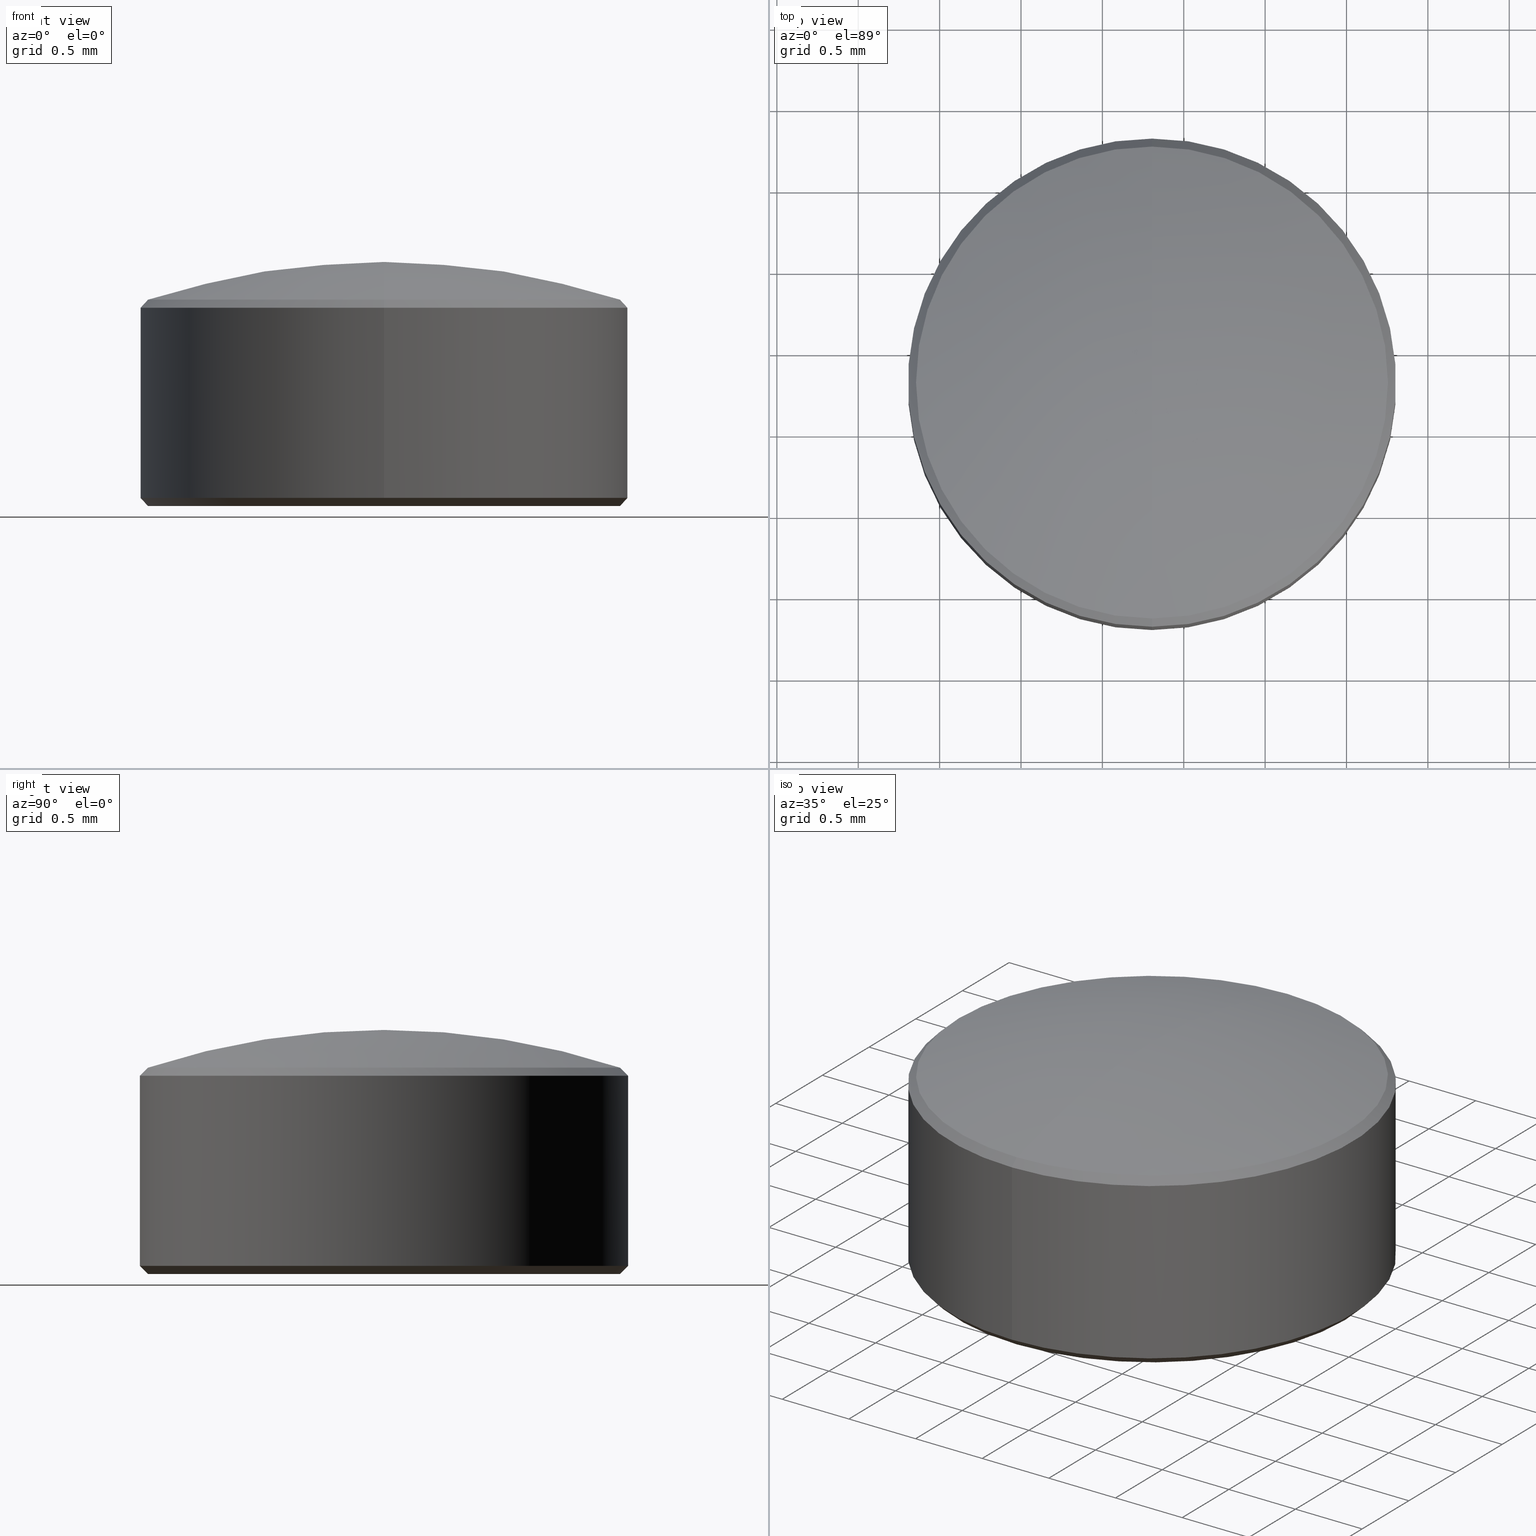
[diagram: canonical four-view strip — front | top / right | iso, engineering-drawing reading convention]
A machine part, canonical four-view strip (front | top / right | iso — engineering-drawing reading convention). The complete STEP part file that produces these views, byte-faithful:
ISO-10303-21;
HEADER;
FILE_DESCRIPTION (( 'STEP AP203' ),
    '1' );
FILE_NAME ('TTN162587-E0W.STEP',
    '2019-10-24T13:59:12',
    ( '' ),
    ( '' ),
    'SwSTEP 2.0',
    'SolidWorks 2018',
    '' );
FILE_SCHEMA (( 'CONFIG_CONTROL_DESIGN' ));
ENDSEC;

DATA;
#1 = AXIS2_PLACEMENT_3D ( 'NONE', #253, #212, #81 ) ;
#2 = COORDINATED_UNIVERSAL_TIME_OFFSET ( 5, 0, .BEHIND. ) ;
#3 = EDGE_LOOP ( 'NONE', ( #36, #68, #186, #115 ) ) ;
#4 = ORIENTED_EDGE ( 'NONE', *, *, #192, .F. ) ;
#5 = AXIS2_PLACEMENT_3D ( 'NONE', #184, #187, #50 ) ;
#6 = CIRCLE ( 'NONE', #25, 1.499999999999999778 ) ;
#7 = PERSON_AND_ORGANIZATION_ROLE ( 'design_owner' ) ;
#8 = DIRECTION ( 'NONE',  ( 0.0000000000000000000, 1.000000000000000000, 1.398669755947758989E-16 ) ) ;
#9 = VERTEX_POINT ( 'NONE', #236 ) ;
#10 = EDGE_CURVE ( 'NONE', #215, #9, #269, .T. ) ;
#11 = CC_DESIGN_SECURITY_CLASSIFICATION ( #112, ( #56 ) ) ;
#12 = APPROVAL_ROLE ( '' ) ;
#13 = ORIENTED_EDGE ( 'NONE', *, *, #177, .F. ) ;
#14 = LOCAL_TIME ( 9, 59, 12.00000000000000000, #32 ) ;
#15 = FACE_OUTER_BOUND ( 'NONE', #209, .T. ) ;
#16 = CC_DESIGN_PERSON_AND_ORGANIZATION_ASSIGNMENT ( #107, #7, ( #64 ) ) ;
#17 = EDGE_LOOP ( 'NONE', ( #74, #31, #288 ) ) ;
#18 = DIRECTION ( 'NONE',  ( 8.659560562354837948E-17, 0.7071067811865396902, 0.7071067811865553443 ) ) ;
#19 = DIRECTION ( 'NONE',  ( 0.0000000000000000000, 1.000000000000000000, 0.0000000000000000000 ) ) ;
#20 = APPROVAL ( #250, 'UNSPECIFIED' ) ;
#21 = CARTESIAN_POINT ( 'NONE',  ( 0.8048939134659998107, 1.311868098657955839, 1.891295987042918902 ) ) ;
#22 = LINE ( 'NONE', #88, #208 ) ;
#23 = DIRECTION ( 'NONE',  ( 0.0000000000000000000, 1.000000000000000000, 1.398669755947758989E-16 ) ) ;
#24 = FACE_OUTER_BOUND ( 'NONE', #100, .T. ) ;
#25 = AXIS2_PLACEMENT_3D ( 'NONE', #222, #121, #185 ) ;
#26 = DIRECTION ( 'NONE',  ( 0.0000000000000000000, -1.224646799147353207E-16, 1.000000000000000000 ) ) ;
#27 = ORIENTED_EDGE ( 'NONE', *, *, #219, .F. ) ;
#28 = DIRECTION ( 'NONE',  ( -0.0000000000000000000, 1.224646799147353207E-16, -1.000000000000000000 ) ) ;
#29 = PRODUCT_RELATED_PRODUCT_CATEGORY ( 'detail', '', ( #64 ) ) ;
#30 = EDGE_CURVE ( 'NONE', #258, #9, #210, .T. ) ;
#31 = ORIENTED_EDGE ( 'NONE', *, *, #57, .T. ) ;
#32 = COORDINATED_UNIVERSAL_TIME_OFFSET ( 5, 0, .BEHIND. ) ;
#33 = VECTOR ( 'NONE', #66, 1000.000000000000000 ) ;
#34 = VECTOR ( 'NONE', #149, 1000.000000000000114 ) ;
#35 = EDGE_CURVE ( 'NONE', #227, #235, #22, .T. ) ;
#36 = ORIENTED_EDGE ( 'NONE', *, *, #292, .T. ) ;
#37 = PRODUCT_DEFINITION ( 'UNKNOWN', '', #56, #151 ) ;
#38 = APPLICATION_CONTEXT ( 'configuration controlled 3d designs of mechanical parts and assemblies' ) ;
#39 = SHAPE_DEFINITION_REPRESENTATION ( #178, #138 ) ;
#40 = SPHERICAL_SURFACE ( 'NONE', #148, 4.650999999999999801 ) ;
#41 = EDGE_CURVE ( 'NONE', #237, #281, #159, .T. ) ;
#42 = ORIENTED_EDGE ( 'NONE', *, *, #230, .T. ) ;
#43 = EDGE_CURVE ( 'NONE', #87, #281, #77, .T. ) ;
#44 = DIRECTION ( 'NONE',  ( 1.000000000000000000, 1.224646799147353207E-16, 1.499759782661857608E-32 ) ) ;
#45 = DIRECTION ( 'NONE',  ( -0.0000000000000000000, 1.224646799147353207E-16, -1.000000000000000000 ) ) ;
#46 = DIRECTION ( 'NONE',  ( 0.0000000000000000000, 1.000000000000000000, 1.495451272393799296E-16 ) ) ;
#47 = CARTESIAN_POINT ( 'NONE',  ( 0.8048939134660000327, 2.761868098657955795, 1.891295987042919124 ) ) ;
#48 = DIRECTION ( 'NONE',  ( -0.0000000000000000000, 1.224646799147353207E-16, -1.000000000000000000 ) ) ;
#49 = CIRCLE ( 'NONE', #108, 1.500000000000000000 ) ;
#50 = DIRECTION ( 'NONE',  ( 0.0000000000000000000, 1.000000000000000000, 1.224646799147353207E-16 ) ) ;
#51 = ORIENTED_EDGE ( 'NONE', *, *, #278, .T. ) ;
#52 = EDGE_LOOP ( 'NONE', ( #4, #69, #82, #239 ) ) ;
#53 = AXIS2_PLACEMENT_3D ( 'NONE', #257, #117, #262 ) ;
#54 = ORIENTED_EDGE ( 'NONE', *, *, #244, .F. ) ;
#55 = FACE_OUTER_BOUND ( 'NONE', #52, .T. ) ;
#56 = PRODUCT_DEFINITION_FORMATION_WITH_SPECIFIED_SOURCE ( 'ANY', '', #64, .NOT_KNOWN. ) ;
#57 = EDGE_CURVE ( 'NONE', #237, #87, #93, .T. ) ;
#58 =( GEOMETRIC_REPRESENTATION_CONTEXT ( 3 ) GLOBAL_UNCERTAINTY_ASSIGNED_CONTEXT ( ( #223 ) ) GLOBAL_UNIT_ASSIGNED_CONTEXT ( ( #109, #211, #132 ) ) REPRESENTATION_CONTEXT ( 'NONE', 'WORKASPACE' ) );
#59 = DIRECTION ( 'NONE',  ( 0.0000000000000000000, 1.000000000000000000, 0.0000000000000000000 ) ) ;
#60 = CARTESIAN_POINT ( 'NONE',  ( 0.8048939134659998107, 1.311868098657955839, -1.259704012957080899 ) ) ;
#61 = ADVANCED_FACE ( 'NONE', ( #89 ), #238, .T. ) ;
#62 = DIRECTION ( 'NONE',  ( -0.0000000000000000000, 1.224646799147353207E-16, -1.000000000000000000 ) ) ;
#63 = ADVANCED_FACE ( 'NONE', ( #15 ), #78, .T. ) ;
#64 = PRODUCT ( 'TTN162587-E0W', 'TTN162587-E0W', '', ( #195 ) ) ;
#65 = ORIENTED_EDGE ( 'NONE', *, *, #41, .T. ) ;
#66 = DIRECTION ( 'NONE',  ( -0.0000000000000000000, 1.224646799147353207E-16, -1.000000000000000000 ) ) ;
#67 = APPROVAL ( #85, 'UNSPECIFIED' ) ;
#68 = ORIENTED_EDGE ( 'NONE', *, *, #192, .T. ) ;
#69 = ORIENTED_EDGE ( 'NONE', *, *, #43, .T. ) ;
#70 = CARTESIAN_POINT ( 'NONE',  ( 0.8048939134660000327, -0.1881319013420442166, 1.941295987042919613 ) ) ;
#71 = EDGE_CURVE ( 'NONE', #227, #215, #198, .T. ) ;
#72 = AXIS2_PLACEMENT_3D ( 'NONE', #263, #44, #140 ) ;
#73 = CIRCLE ( 'NONE', #248, 1.500000000000000000 ) ;
#74 = ORIENTED_EDGE ( 'NONE', *, *, #41, .F. ) ;
#75 = CC_DESIGN_PERSON_AND_ORGANIZATION_ASSIGNMENT ( #265, #285, ( #56 ) ) ;
#76 = APPROVAL_DATE_TIME ( #189, #20 ) ;
#77 = CIRCLE ( 'NONE', #53, 1.450000000000001066 ) ;
#78 = CYLINDRICAL_SURFACE ( 'NONE', #179, 1.500000000000000000 ) ;
#79 = DATE_TIME_ROLE ( 'creation_date' ) ;
#80 = AXIS2_PLACEMENT_3D ( 'NONE', #162, #200, #19 ) ;
#81 = DIRECTION ( 'NONE',  ( 1.000000000000000000, 0.0000000000000000000, 0.0000000000000000000 ) ) ;
#82 = ORIENTED_EDGE ( 'NONE', *, *, #271, .T. ) ;
#83 = PERSON_AND_ORGANIZATION ( #254, #167 ) ;
#84 = APPLICATION_PROTOCOL_DEFINITION ( 'international standard', 'config_control_design', 1994, #38 ) ;
#85 = APPROVAL_STATUS ( 'not_yet_approved' ) ;
#86 = APPROVAL_DATE_TIME ( #146, #67 ) ;
#87 = VERTEX_POINT ( 'NONE', #144 ) ;
#88 = CARTESIAN_POINT ( 'NONE',  ( 0.8048939134660000327, -0.1881319013420442166, 1.891295987042918680 ) ) ;
#89 = FACE_OUTER_BOUND ( 'NONE', #147, .T. ) ;
#90 = AXIS2_PLACEMENT_3D ( 'NONE', #182, #91, #136 ) ;
#91 = DIRECTION ( 'NONE',  ( 0.0000000000000000000, -1.224646799147353207E-16, 1.000000000000000000 ) ) ;
#92 = EDGE_LOOP ( 'NONE', ( #13, #158, #273, #234 ) ) ;
#93 = CIRCLE ( 'NONE', #72, 4.650999999999999801 ) ;
#94 = DIRECTION ( 'NONE',  ( 0.0000000000000000000, 1.000000000000000000, 0.0000000000000000000 ) ) ;
#95 = DIRECTION ( 'NONE',  ( -0.0000000000000000000, 1.224646799147353207E-16, -1.000000000000000000 ) ) ;
#96 = CARTESIAN_POINT ( 'NONE',  ( 0.8048939134660000327, -0.1881319013420444108, 3.109492859778959950 ) ) ;
#97 = DIRECTION ( 'NONE',  ( 0.0000000000000000000, 1.000000000000000000, 1.445602896647339163E-16 ) ) ;
#98 = CONICAL_SURFACE ( 'NONE', #282, 1.499999999999999778, 0.7853981633974482790 ) ;
#99 = CLOSED_SHELL ( 'NONE', ( #152, #284, #213, #111, #216, #63, #174, #232, #61 ) ) ;
#100 = EDGE_LOOP ( 'NONE', ( #226, #65, #169 ) ) ;
#101 = COORDINATED_UNIVERSAL_TIME_OFFSET ( 5, 0, .BEHIND. ) ;
#102 = CC_DESIGN_APPROVAL ( #67, ( #37 ) ) ;
#103 = VECTOR ( 'NONE', #241, 1000.000000000000000 ) ;
#104 = CC_DESIGN_PERSON_AND_ORGANIZATION_ASSIGNMENT ( #83, #233, ( #56 ) ) ;
#105 = DIRECTION ( 'NONE',  ( 0.0000000000000000000, 0.7071067811865476838, -0.7071067811865474617 ) ) ;
#106 = APPROVAL_DATE_TIME ( #249, #267 ) ;
#107 = PERSON_AND_ORGANIZATION ( #254, #167 ) ;
#108 = AXIS2_PLACEMENT_3D ( 'NONE', #124, #294, #163 ) ;
#109 =( LENGTH_UNIT ( ) NAMED_UNIT ( * ) SI_UNIT ( .MILLI., .METRE. ) );
#110 = DATE_TIME_ROLE ( 'classification_date' ) ;
#111 = ADVANCED_FACE ( 'NONE', ( #170 ), #243, .T. ) ;
#112 = SECURITY_CLASSIFICATION ( '', '', #231 ) ;
#113 = ORIENTED_EDGE ( 'NONE', *, *, #30, .F. ) ;
#114 = FACE_OUTER_BOUND ( 'NONE', #92, .T. ) ;
#115 = ORIENTED_EDGE ( 'NONE', *, *, #271, .F. ) ;
#116 = EDGE_LOOP ( 'NONE', ( #42, #134, #175, #255 ) ) ;
#117 = DIRECTION ( 'NONE',  ( -0.0000000000000000000, 1.224646799147353207E-16, -1.000000000000000000 ) ) ;
#118 = AXIS2_PLACEMENT_3D ( 'NONE', #240, #28, #126 ) ;
#119 = DIRECTION ( 'NONE',  ( 0.0000000000000000000, 1.000000000000000000, 1.445602896647339163E-16 ) ) ;
#120 = LOCAL_TIME ( 9, 59, 12.00000000000000000, #2 ) ;
#121 = DIRECTION ( 'NONE',  ( -0.0000000000000000000, 1.224646799147353207E-16, -1.000000000000000000 ) ) ;
#122 = CARTESIAN_POINT ( 'NONE',  ( 0.8048939134659998107, 1.311868098657955839, -1.259704012957080899 ) ) ;
#123 = CC_DESIGN_APPROVAL ( #267, ( #56 ) ) ;
#124 = CARTESIAN_POINT ( 'NONE',  ( 0.8048939134659998107, 1.311868098657955839, 1.941295987042919835 ) ) ;
#125 = PLANE ( 'NONE',  #5 ) ;
#126 = DIRECTION ( 'NONE',  ( 0.0000000000000000000, 1.000000000000000000, 1.495451272393799296E-16 ) ) ;
#127 = ORIENTED_EDGE ( 'NONE', *, *, #10, .T. ) ;
#128 = DATE_AND_TIME ( #228, #120 ) ;
#129 = APPROVAL_ROLE ( '' ) ;
#130 = FACE_OUTER_BOUND ( 'NONE', #3, .T. ) ;
#131 = CARTESIAN_POINT ( 'NONE',  ( 0.8048939134659998107, -0.1381319013420442832, 1.891295987042918680 ) ) ;
#132 =( NAMED_UNIT ( * ) SI_UNIT ( $, .STERADIAN. ) SOLID_ANGLE_UNIT ( ) );
#133 = DIRECTION ( 'NONE',  ( 1.000000000000000000, 0.0000000000000000000, -0.0000000000000000000 ) ) ;
#134 = ORIENTED_EDGE ( 'NONE', *, *, #35, .T. ) ;
#135 = CC_DESIGN_DATE_AND_TIME_ASSIGNMENT ( #128, #110, ( #112 ) ) ;
#136 = DIRECTION ( 'NONE',  ( 0.0000000000000000000, -1.000000000000000000, -1.495451272393799049E-16 ) ) ;
#137 = CIRCLE ( 'NONE', #193, 1.449999999999999956 ) ;
#138 = ADVANCED_BREP_SHAPE_REPRESENTATION ( 'TTN162587-E0W', ( #229, #1 ), #58 ) ;
#139 = AXIS2_PLACEMENT_3D ( 'NONE', #141, #95, #266 ) ;
#140 = DIRECTION ( 'NONE',  ( -1.165558129956465865E-16, 1.000000000000000000, 0.0000000000000000000 ) ) ;
#141 = CARTESIAN_POINT ( 'NONE',  ( 0.8048939134659998107, 1.311868098657955839, 1.891295987042918902 ) ) ;
#142 = APPROVAL_PERSON_ORGANIZATION ( #183, #20, #153 ) ;
#143 = DIRECTION ( 'NONE',  ( 1.000000000000000000, 0.0000000000000000000, -0.0000000000000000000 ) ) ;
#144 = CARTESIAN_POINT ( 'NONE',  ( 0.8048939134660000327, -0.1381319013420453656, 3.159492859778958884 ) ) ;
#145 = FACE_OUTER_BOUND ( 'NONE', #17, .T. ) ;
#146 = DATE_AND_TIME ( #245, #298 ) ;
#147 = EDGE_LOOP ( 'NONE', ( #113, #54, #51, #27 ) ) ;
#148 = AXIS2_PLACEMENT_3D ( 'NONE', #122, #143, #23 ) ;
#149 = DIRECTION ( 'NONE',  ( 0.0000000000000000000, -0.7071067811865399122, 0.7071067811865551223 ) ) ;
#150 = PERSON_AND_ORGANIZATION_ROLE ( 'classification_officer' ) ;
#151 = DESIGN_CONTEXT ( 'detailed design', #214, 'design' ) ;
#152 = ADVANCED_FACE ( 'NONE', ( #114 ), #188, .T. ) ;
#153 = APPROVAL_ROLE ( '' ) ;
#154 = EDGE_CURVE ( 'NONE', #235, #9, #49, .T. ) ;
#155 = LINE ( 'NONE', #131, #34 ) ;
#156 = DIRECTION ( 'NONE',  ( -1.000000000000000000, 0.0000000000000000000, 0.0000000000000000000 ) ) ;
#157 = ORIENTED_EDGE ( 'NONE', *, *, #177, .T. ) ;
#158 = ORIENTED_EDGE ( 'NONE', *, *, #30, .T. ) ;
#159 = CIRCLE ( 'NONE', #260, 4.650999999999999801 ) ;
#160 = DIRECTION ( 'NONE',  ( 0.0000000000000000000, 0.0000000000000000000, 1.000000000000000000 ) ) ;
#161 = DIRECTION ( 'NONE',  ( 0.0000000000000000000, -1.224646799147353207E-16, 1.000000000000000000 ) ) ;
#162 = CARTESIAN_POINT ( 'NONE',  ( 0.8048939134659998107, 1.311868098657955617, 3.109492859778959950 ) ) ;
#163 = DIRECTION ( 'NONE',  ( 0.0000000000000000000, 1.000000000000000000, 1.445602896647339163E-16 ) ) ;
#164 = VECTOR ( 'NONE', #105, 1000.000000000000000 ) ;
#165 = CARTESIAN_POINT ( 'NONE',  ( 0.8048939134659998107, 1.311868098657955617, 3.109492859778959950 ) ) ;
#166 = ORIENTED_EDGE ( 'NONE', *, *, #71, .T. ) ;
#167 = ORGANIZATION ( 'UNSPECIFIED', 'UNSPECIFIED', '' ) ;
#168 = CARTESIAN_POINT ( 'NONE',  ( 0.8048939134659998107, 1.311868098657955839, 1.941295987042919835 ) ) ;
#169 = ORIENTED_EDGE ( 'NONE', *, *, #43, .F. ) ;
#170 = FACE_OUTER_BOUND ( 'NONE', #116, .T. ) ;
#171 = ORIENTED_EDGE ( 'NONE', *, *, #219, .T. ) ;
#172 = APPROVAL_PERSON_ORGANIZATION ( #289, #67, #129 ) ;
#173 = APPLICATION_PROTOCOL_DEFINITION ( 'international standard', 'config_control_design', 1994, #214 ) ;
#174 = ADVANCED_FACE ( 'NONE', ( #55 ), #98, .T. ) ;
#175 = ORIENTED_EDGE ( 'NONE', *, *, #154, .T. ) ;
#176 = CARTESIAN_POINT ( 'NONE',  ( 0.8048939134660000327, 2.761868098657955795, 1.891295987042919124 ) ) ;
#177 = EDGE_CURVE ( 'NONE', #258, #199, #137, .T. ) ;
#178 = PRODUCT_DEFINITION_SHAPE ( 'NONE', 'NONE',  #37 ) ;
#179 = AXIS2_PLACEMENT_3D ( 'NONE', #218, #181, #119 ) ;
#180 = CALENDAR_DATE ( 2019, 24, 10 ) ;
#181 = DIRECTION ( 'NONE',  ( -0.0000000000000000000, 1.224646799147353207E-16, -1.000000000000000000 ) ) ;
#182 = CARTESIAN_POINT ( 'NONE',  ( 0.8048939134659998107, 1.311868098657955839, 1.891295987042918902 ) ) ;
#183 = PERSON_AND_ORGANIZATION ( #254, #167 ) ;
#184 = CARTESIAN_POINT ( 'NONE',  ( 0.8048939134659998107, 1.311868098657955839, 1.891295987042918902 ) ) ;
#185 = DIRECTION ( 'NONE',  ( 0.0000000000000000000, 1.000000000000000000, 0.0000000000000000000 ) ) ;
#186 = ORIENTED_EDGE ( 'NONE', *, *, #230, .F. ) ;
#187 = DIRECTION ( 'NONE',  ( -0.0000000000000000000, 1.224646799147353207E-16, -1.000000000000000000 ) ) ;
#188 = CONICAL_SURFACE ( 'NONE', #220, 1.450000000000000178, 0.7853981633974373988 ) ;
#189 = DATE_AND_TIME ( #295, #14 ) ;
#190 = APPROVAL_STATUS ( 'not_yet_approved' ) ;
#191 = SPHERICAL_SURFACE ( 'NONE', #206, 4.650999999999999801 ) ;
#192 = EDGE_CURVE ( 'NONE', #87, #227, #279, .T. ) ;
#193 = AXIS2_PLACEMENT_3D ( 'NONE', #296, #301, #46 ) ;
#194 = ORIENTED_EDGE ( 'NONE', *, *, #244, .T. ) ;
#195 = MECHANICAL_CONTEXT ( 'NONE', #38, 'mechanical' ) ;
#196 = VECTOR ( 'NONE', #18, 1000.000000000000114 ) ;
#197 = CARTESIAN_POINT ( 'NONE',  ( 0.8048939134659998107, 2.811868098657956061, 1.891295987042919124 ) ) ;
#198 = CIRCLE ( 'NONE', #80, 1.499999999999999778 ) ;
#199 = VERTEX_POINT ( 'NONE', #268 ) ;
#200 = DIRECTION ( 'NONE',  ( -0.0000000000000000000, 1.224646799147353207E-16, -1.000000000000000000 ) ) ;
#201 = PERSON_AND_ORGANIZATION ( #254, #167 ) ;
#202 = CARTESIAN_POINT ( 'NONE',  ( 0.8048939134659998107, 2.811868098657955617, 3.109492859778959950 ) ) ;
#203 = LINE ( 'NONE', #221, #164 ) ;
#204 = DIRECTION ( 'NONE',  ( 0.0000000000000000000, 1.000000000000000000, 0.0000000000000000000 ) ) ;
#205 = DATE_AND_TIME ( #259, #274 ) ;
#206 = AXIS2_PLACEMENT_3D ( 'NONE', #60, #133, #8 ) ;
#207 = PERSON_AND_ORGANIZATION ( #254, #167 ) ;
#208 = VECTOR ( 'NONE', #45, 1000.000000000000000 ) ;
#209 = EDGE_LOOP ( 'NONE', ( #224, #166, #127, #171 ) ) ;
#210 = LINE ( 'NONE', #176, #196 ) ;
#211 =( NAMED_UNIT ( * ) PLANE_ANGLE_UNIT ( ) SI_UNIT ( $, .RADIAN. ) );
#212 = DIRECTION ( 'NONE',  ( 0.0000000000000000000, 0.0000000000000000000, 1.000000000000000000 ) ) ;
#213 = ADVANCED_FACE ( 'NONE', ( #130 ), #286, .T. ) ;
#214 = APPLICATION_CONTEXT ( 'configuration controlled 3d designs of mechanical parts and assemblies' ) ;
#215 = VERTEX_POINT ( 'NONE', #202 ) ;
#216 = ADVANCED_FACE ( 'NONE', ( #217 ), #125, .T. ) ;
#217 = FACE_OUTER_BOUND ( 'NONE', #297, .T. ) ;
#218 = CARTESIAN_POINT ( 'NONE',  ( 0.8048939134659998107, 1.311868098657955839, 1.891295987042918902 ) ) ;
#219 = EDGE_CURVE ( 'NONE', #9, #235, #73, .T. ) ;
#220 = AXIS2_PLACEMENT_3D ( 'NONE', #21, #161, #299 ) ;
#221 = CARTESIAN_POINT ( 'NONE',  ( 0.8048939134659998107, 2.811868098657955617, 3.109492859778959950 ) ) ;
#222 = CARTESIAN_POINT ( 'NONE',  ( 0.8048939134659998107, 1.311868098657955617, 3.109492859778959950 ) ) ;
#223 = UNCERTAINTY_MEASURE_WITH_UNIT (LENGTH_MEASURE( 1.000000000000000082E-05 ), #109, 'distance_accuracy_value', 'NONE');
#224 = ORIENTED_EDGE ( 'NONE', *, *, #35, .F. ) ;
#225 = CARTESIAN_POINT ( 'NONE',  ( 0.8048939134659998107, 1.311868098657955617, 3.391295987042918458 ) ) ;
#226 = ORIENTED_EDGE ( 'NONE', *, *, #57, .F. ) ;
#227 = VERTEX_POINT ( 'NONE', #242 ) ;
#228 = CALENDAR_DATE ( 2019, 24, 10 ) ;
#229 = MANIFOLD_SOLID_BREP ( 'TTN162272-1-solid1', #99 ) ;
#230 = EDGE_CURVE ( 'NONE', #215, #227, #6, .T. ) ;
#231 = SECURITY_CLASSIFICATION_LEVEL ( 'unclassified' ) ;
#232 = ADVANCED_FACE ( 'NONE', ( #24 ), #40, .T. ) ;
#233 = PERSON_AND_ORGANIZATION_ROLE ( 'design_supplier' ) ;
#234 = ORIENTED_EDGE ( 'NONE', *, *, #278, .F. ) ;
#235 = VERTEX_POINT ( 'NONE', #70 ) ;
#236 = CARTESIAN_POINT ( 'NONE',  ( 0.8048939134659998107, 2.811868098657956061, 1.941295987042920057 ) ) ;
#237 = VERTEX_POINT ( 'NONE', #225 ) ;
#238 = CONICAL_SURFACE ( 'NONE', #90, 1.450000000000000178, 0.7853981633974373988 ) ;
#239 = ORIENTED_EDGE ( 'NONE', *, *, #71, .F. ) ;
#240 = CARTESIAN_POINT ( 'NONE',  ( 0.8048939134659998107, 1.311868098657955839, 1.891295987042918902 ) ) ;
#241 = DIRECTION ( 'NONE',  ( 8.659560562354934091E-17, -0.7071067811865474617, -0.7071067811865476838 ) ) ;
#242 = CARTESIAN_POINT ( 'NONE',  ( 0.8048939134660000327, -0.1881319013420444108, 3.109492859778959950 ) ) ;
#243 = CYLINDRICAL_SURFACE ( 'NONE', #139, 1.500000000000000000 ) ;
#244 = EDGE_CURVE ( 'NONE', #199, #258, #270, .T. ) ;
#245 = CALENDAR_DATE ( 2019, 24, 10 ) ;
#246 = CC_DESIGN_PERSON_AND_ORGANIZATION_ASSIGNMENT ( #201, #280, ( #37 ) ) ;
#247 = LOCAL_TIME ( 9, 59, 12.00000000000000000, #101 ) ;
#248 = AXIS2_PLACEMENT_3D ( 'NONE', #168, #26, #97 ) ;
#249 = DATE_AND_TIME ( #180, #247 ) ;
#250 = APPROVAL_STATUS ( 'not_yet_approved' ) ;
#251 = COORDINATED_UNIVERSAL_TIME_OFFSET ( 5, 0, .BEHIND. ) ;
#252 = CARTESIAN_POINT ( 'NONE',  ( 0.8048939134659998107, 2.761868098657956683, 3.159492859778958884 ) ) ;
#253 = CARTESIAN_POINT ( 'NONE',  ( 0.0000000000000000000, 0.0000000000000000000, 0.0000000000000000000 ) ) ;
#254 = PERSON ( 'UNSPECIFIED', 'UNSPECIFIED', 'UNSPECIFIED', ('UNSPECIFIED'), ('UNSPECIFIED'), ('UNSPECIFIED') ) ;
#255 = ORIENTED_EDGE ( 'NONE', *, *, #10, .F. ) ;
#256 = CIRCLE ( 'NONE', #290, 1.450000000000001066 ) ;
#257 = CARTESIAN_POINT ( 'NONE',  ( 0.8048939134659998107, 1.311868098657955617, 3.159492859778958884 ) ) ;
#258 = VERTEX_POINT ( 'NONE', #47 ) ;
#259 = CALENDAR_DATE ( 2019, 24, 10 ) ;
#260 = AXIS2_PLACEMENT_3D ( 'NONE', #291, #156, #160 ) ;
#261 = APPROVAL_PERSON_ORGANIZATION ( #207, #267, #12 ) ;
#262 = DIRECTION ( 'NONE',  ( 0.0000000000000000000, 1.000000000000000000, 0.0000000000000000000 ) ) ;
#263 = CARTESIAN_POINT ( 'NONE',  ( 0.8048939134659998107, 1.311868098657955839, -1.259704012957080899 ) ) ;
#264 = DIRECTION ( 'NONE',  ( -0.0000000000000000000, 1.224646799147353207E-16, -1.000000000000000000 ) ) ;
#265 = PERSON_AND_ORGANIZATION ( #254, #167 ) ;
#266 = DIRECTION ( 'NONE',  ( 0.0000000000000000000, 1.000000000000000000, 1.445602896647339163E-16 ) ) ;
#267 = APPROVAL ( #190, 'UNSPECIFIED' ) ;
#268 = CARTESIAN_POINT ( 'NONE',  ( 0.8048939134659998107, -0.1381319013420442832, 1.891295987042918680 ) ) ;
#269 = LINE ( 'NONE', #197, #33 ) ;
#270 = CIRCLE ( 'NONE', #118, 1.449999999999999956 ) ;
#271 = EDGE_CURVE ( 'NONE', #281, #215, #203, .T. ) ;
#272 = AXIS2_PLACEMENT_3D ( 'NONE', #165, #264, #94 ) ;
#273 = ORIENTED_EDGE ( 'NONE', *, *, #154, .F. ) ;
#274 = LOCAL_TIME ( 9, 59, 12.00000000000000000, #251 ) ;
#275 = CARTESIAN_POINT ( 'NONE',  ( 0.8048939134659998107, 1.311868098657955617, 3.109492859778959950 ) ) ;
#276 = COORDINATED_UNIVERSAL_TIME_OFFSET ( 5, 0, .BEHIND. ) ;
#277 = CC_DESIGN_DATE_AND_TIME_ASSIGNMENT ( #205, #79, ( #37 ) ) ;
#278 = EDGE_CURVE ( 'NONE', #199, #235, #155, .T. ) ;
#279 = LINE ( 'NONE', #96, #103 ) ;
#280 = PERSON_AND_ORGANIZATION_ROLE ( 'creator' ) ;
#281 = VERTEX_POINT ( 'NONE', #252 ) ;
#282 = AXIS2_PLACEMENT_3D ( 'NONE', #275, #48, #204 ) ;
#283 = CARTESIAN_POINT ( 'NONE',  ( 0.8048939134659998107, 1.311868098657955617, 3.159492859778958884 ) ) ;
#284 = ADVANCED_FACE ( 'NONE', ( #145 ), #191, .T. ) ;
#285 = PERSON_AND_ORGANIZATION_ROLE ( 'creator' ) ;
#286 = CONICAL_SURFACE ( 'NONE', #272, 1.499999999999999778, 0.7853981633974482790 ) ;
#287 = CC_DESIGN_APPROVAL ( #20, ( #112 ) ) ;
#288 = ORIENTED_EDGE ( 'NONE', *, *, #292, .F. ) ;
#289 = PERSON_AND_ORGANIZATION ( #254, #167 ) ;
#290 = AXIS2_PLACEMENT_3D ( 'NONE', #283, #62, #59 ) ;
#291 = CARTESIAN_POINT ( 'NONE',  ( 0.8048939134659998107, 1.311868098657955839, -1.259704012957080899 ) ) ;
#292 = EDGE_CURVE ( 'NONE', #281, #87, #256, .T. ) ;
#293 = CC_DESIGN_PERSON_AND_ORGANIZATION_ASSIGNMENT ( #300, #150, ( #112 ) ) ;
#294 = DIRECTION ( 'NONE',  ( 0.0000000000000000000, -1.224646799147353207E-16, 1.000000000000000000 ) ) ;
#295 = CALENDAR_DATE ( 2019, 24, 10 ) ;
#296 = CARTESIAN_POINT ( 'NONE',  ( 0.8048939134659998107, 1.311868098657955839, 1.891295987042918902 ) ) ;
#297 = EDGE_LOOP ( 'NONE', ( #194, #157 ) ) ;
#298 = LOCAL_TIME ( 9, 59, 12.00000000000000000, #276 ) ;
#299 = DIRECTION ( 'NONE',  ( 0.0000000000000000000, -1.000000000000000000, -1.495451272393799049E-16 ) ) ;
#300 = PERSON_AND_ORGANIZATION ( #254, #167 ) ;
#301 = DIRECTION ( 'NONE',  ( -0.0000000000000000000, 1.224646799147353207E-16, -1.000000000000000000 ) ) ;
ENDSEC;
END-ISO-10303-21;
